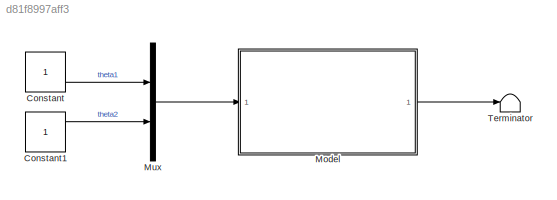
MODEL slx_d81f8997aff3
KIND model
CONFIG AbsTol = auto
CONFIG EnableMultiTasking = off
CONFIG FixedStep = auto
CONFIG MaxStep = auto
CONFIG MinStep = auto
CONFIG RelTol = 1e-3
CONFIG SampleTimeConstraint = Unconstrained
CONFIG SolverName = VariableStepAuto
CONFIG StartTime = 0.0
CONFIG StopTime = 10.0
BLOCK [Constant] Constant
  SampleTime = -1
  VectorParams1D = off
BLOCK [Constant] Constant1
  SampleTime = -1
  VectorParams1D = off
BLOCK [ModelReference] Model
  ModelNameDialog = plantFunction.slx
  ModelReferenceVersion = 1.4
BLOCK [Mux] Mux
  DisplayOption = bar
  Inputs = 2
BLOCK [Terminator] Terminator
LINE Constant1:1 -> Mux:2
LINE Constant:1 -> Mux:1
LINE Model:1 -> Terminator:1
LINE Mux:1 -> Model:1
